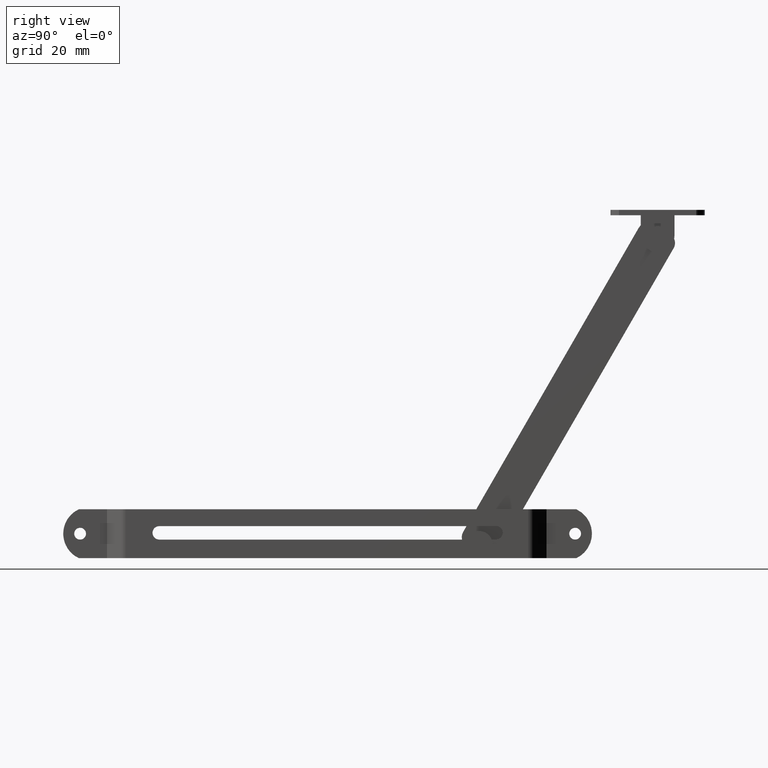
[diagram: clean part render]
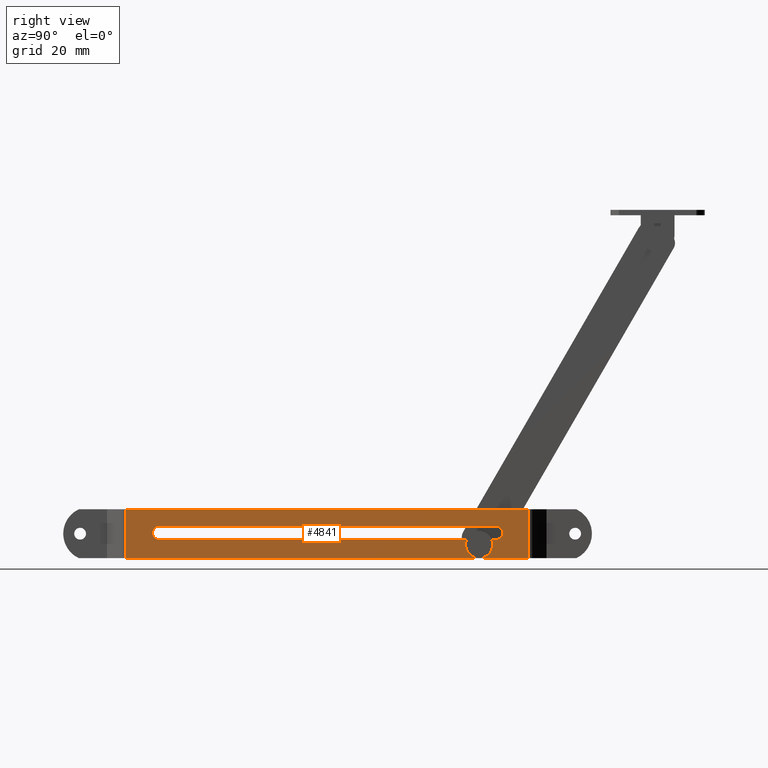
[diagram: same view with one face highlighted and labeled with its STEP entity id]
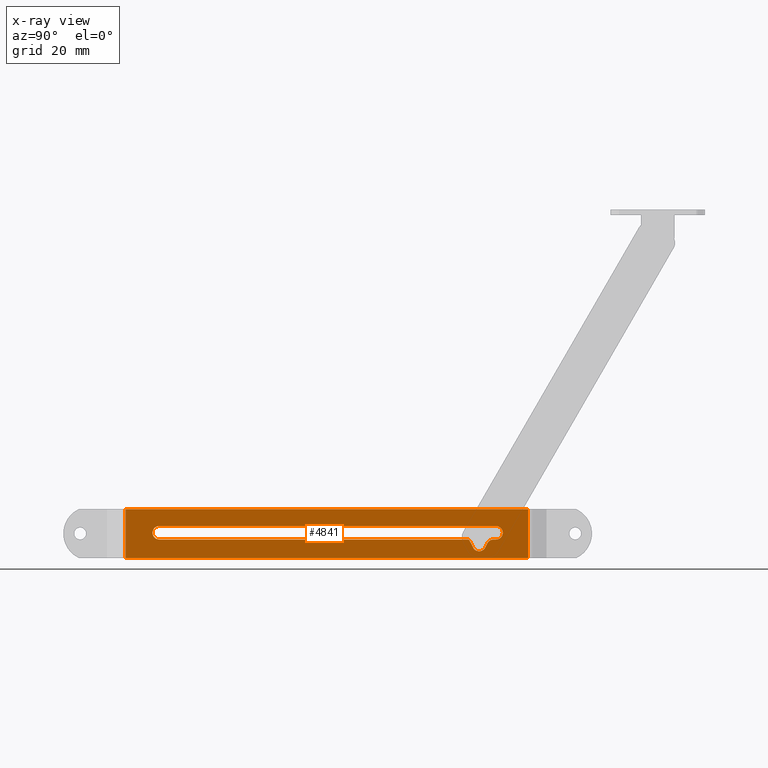
[diagram: x-ray of the same camera — body ghosted, the highlighted face saturated]
A machine part, right view. The second image highlights one B-rep face of the part: STEP entity #4841.
The next image is the same camera in x-ray: the body ghosted, the highlighted face saturated — about 0% of this face is hidden behind the body in this view.
In plain terms, the highlighted face is a freeform B-spline surface patch.
Its self-contained STEP definition (entity closure, byte-faithful):
#4096=CARTESIAN_POINT('',(6.000000000000120,-31.807403999999998,-1.750000000000000));
#4097=VERTEX_POINT('',#4096);
#4103=CARTESIAN_POINT('',(6.000000000000120,-31.361231838264601,-2.024322349151845));
#4104=VERTEX_POINT('',#4103);
#4105=CARTESIAN_POINT('',(6.000000000000120,-31.361231838264580,-2.024322349151836));
#4106=CARTESIAN_POINT('',(6.000000000000120,-31.499986401281109,-1.750000000000000));
#4107=CARTESIAN_POINT('',(6.000000000000120,-31.807403999999998,-1.750000000000000));
#4115=(BOUNDED_CURVE()B_SPLINE_CURVE(2,(#4105,#4106,#4107),.UNSPECIFIED.,.F.,.U.)CURVE()GEOMETRIC_REPRESENTATION_ITEM()QUASI_UNIFORM_CURVE()RATIONAL_B_SPLINE_CURVE((1.0,0.851867155634119,1.0))REPRESENTATION_ITEM(''));
#4116=EDGE_CURVE('',#4104,#4097,#4115,.T.);
#4153=CARTESIAN_POINT('',(6.000000000000120,-123.499999965093390,-1.750000000000000));
#4154=VERTEX_POINT('',#4153);
#4160=CARTESIAN_POINT('',(6.000000000000120,-123.499999965093390,-1.750000000000000));
#4161=CARTESIAN_POINT('',(6.000000000000120,-31.807403999999998,-1.750000000000000));
#4162=QUASI_UNIFORM_CURVE('',1,(#4160,#4161),.UNSPECIFIED.,.F.,.U.);
#4163=EDGE_CURVE('',#4154,#4097,#4162,.T.);
#4206=CARTESIAN_POINT('',(6.000000000000120,-123.500000000000000,2.250000000000000));
#4207=VERTEX_POINT('',#4206);
#4213=CARTESIAN_POINT('',(6.000000000000120,-123.500000000000000,2.249999999999993));
#4214=CARTESIAN_POINT('',(6.000000000000120,-124.654700546136270,2.249999999999993));
#4215=CARTESIAN_POINT('',(6.000000000000120,-125.232050813386710,1.249999989923328));
#4216=CARTESIAN_POINT('',(6.000000000000120,-125.809401080637040,0.249999979846663));
#4217=CARTESIAN_POINT('',(6.000000000000120,-125.232050795933400,-0.750000020153337));
#4218=CARTESIAN_POINT('',(6.000000000000120,-124.654700511229660,-1.750000020153337));
#4219=CARTESIAN_POINT('',(6.000000000000120,-123.499999965093390,-1.750000000000007));
#4227=(BOUNDED_CURVE()B_SPLINE_CURVE(2,(#4213,#4214,#4215,#4216,#4217,#4218,#4219),.UNSPECIFIED.,.F.,.U.)B_SPLINE_CURVE_WITH_KNOTS((3,2,2,3),(0.0,0.333333333333333,0.666666666666667,1.0),.UNSPECIFIED.)CURVE()GEOMETRIC_REPRESENTATION_ITEM()RATIONAL_B_SPLINE_CURVE((1.0,0.866025402329997,1.0,0.866025402329997,1.0,0.866025402329997,1.0))REPRESENTATION_ITEM(''));
#4228=EDGE_CURVE('',#4207,#4154,#4227,.T.);
#4246=CARTESIAN_POINT('',(6.000000000000120,-23.500000104719749,2.250000000000000));
#4247=VERTEX_POINT('',#4246);
#4253=CARTESIAN_POINT('',(6.000000000000120,-23.500000104719749,2.250000000000000));
#4254=CARTESIAN_POINT('',(6.000000000000120,-123.500000000000000,2.250000000000000));
#4255=QUASI_UNIFORM_CURVE('',1,(#4253,#4254),.UNSPECIFIED.,.F.,.U.);
#4256=EDGE_CURVE('',#4247,#4207,#4255,.T.);
#4299=CARTESIAN_POINT('',(6.000000000000120,-23.500000000000000,-1.750000000000000));
#4300=VERTEX_POINT('',#4299);
#4306=CARTESIAN_POINT('',(6.000000000000120,-23.500000000000000,-1.750000000000000));
#4307=CARTESIAN_POINT('',(6.000000000000120,-22.345299438349699,-1.750000000000000));
#4308=CARTESIAN_POINT('',(6.000000000000120,-21.767949174977829,-0.749999969770012));
#4309=CARTESIAN_POINT('',(6.000000000000120,-21.190598911605967,0.250000060459976));
#4310=CARTESIAN_POINT('',(6.000000000000120,-21.767949227337709,1.250000060459976));
#4311=CARTESIAN_POINT('',(6.000000000000120,-22.345299543069441,2.250000060459974));
#4312=CARTESIAN_POINT('',(6.000000000000120,-23.500000104719749,2.249999999999998));
#4320=(BOUNDED_CURVE()B_SPLINE_CURVE(2,(#4306,#4307,#4308,#4309,#4310,#4311,#4312),.UNSPECIFIED.,.F.,.U.)B_SPLINE_CURVE_WITH_KNOTS((3,2,2,3),(0.0,0.333333333333333,0.666666666666667,1.0),.UNSPECIFIED.)CURVE()GEOMETRIC_REPRESENTATION_ITEM()RATIONAL_B_SPLINE_CURVE((1.0,0.866025399421116,1.0,0.866025399421116,1.0,0.866025399421116,1.0))REPRESENTATION_ITEM(''));
#4321=EDGE_CURVE('',#4300,#4247,#4320,.T.);
#4339=CARTESIAN_POINT('',(6.000000000000120,-24.270324999999950,-1.750000000000000));
#4340=VERTEX_POINT('',#4339);
#4346=CARTESIAN_POINT('',(6.000000000000120,-24.270324999999950,-1.750000000000000));
#4347=CARTESIAN_POINT('',(6.000000000000120,-23.500000000000000,-1.750000000000000));
#4348=QUASI_UNIFORM_CURVE('',1,(#4346,#4347),.UNSPECIFIED.,.F.,.U.);
#4349=EDGE_CURVE('',#4340,#4300,#4348,.T.);
#4371=CARTESIAN_POINT('',(6.000000000000120,-26.058874883500149,-2.854964070982900));
#4372=VERTEX_POINT('',#4371);
#4378=CARTESIAN_POINT('',(6.000000000000120,-24.270324999999950,-1.750000000000000));
#4379=CARTESIAN_POINT('',(6.000000000000120,-25.505922710946095,-1.750000000000000));
#4380=CARTESIAN_POINT('',(6.000000000000120,-26.058874883500138,-2.854964070982911));
#4388=(BOUNDED_CURVE()B_SPLINE_CURVE(2,(#4378,#4379,#4380),.UNSPECIFIED.,.F.,.U.)CURVE()GEOMETRIC_REPRESENTATION_ITEM()QUASI_UNIFORM_CURVE()RATIONAL_B_SPLINE_CURVE((1.0,0.850740255456548,1.0))REPRESENTATION_ITEM(''));
#4389=EDGE_CURVE('',#4340,#4372,#4388,.T.);
#4420=CARTESIAN_POINT('',(6.000000000000120,-26.711450116478851,-4.145035928975225));
#4421=VERTEX_POINT('',#4420);
#4427=CARTESIAN_POINT('',(6.000000000000120,-26.711450116478851,-4.145035928975225));
#4428=CARTESIAN_POINT('',(6.000000000000120,-26.058874883500149,-2.854964070982900));
#4429=QUASI_UNIFORM_CURVE('',1,(#4427,#4428),.UNSPECIFIED.,.F.,.U.);
#4430=EDGE_CURVE('',#4421,#4372,#4429,.T.);
#4467=CARTESIAN_POINT('',(6.000000000000120,-30.284688646941699,-4.152710603392625));
#4468=VERTEX_POINT('',#4467);
#4474=CARTESIAN_POINT('',(6.000000000000120,-30.284688646941689,-4.152710603392616));
#4475=CARTESIAN_POINT('',(6.000000000000120,-29.728333617456915,-5.252642853062361));
#4476=CARTESIAN_POINT('',(6.000000000000120,-28.495704369215829,-5.249995386883722));
#4477=CARTESIAN_POINT('',(6.000000000000120,-27.263075120974747,-5.247347920705081));
#4478=CARTESIAN_POINT('',(6.000000000000120,-26.711450116478868,-4.145035928975217));
#4486=(BOUNDED_CURVE()B_SPLINE_CURVE(2,(#4474,#4475,#4476,#4477,#4478),.UNSPECIFIED.,.F.,.U.)B_SPLINE_CURVE_WITH_KNOTS((3,2,3),(0.0,0.500000000000000,1.0),.UNSPECIFIED.)CURVE()GEOMETRIC_REPRESENTATION_ITEM()RATIONAL_B_SPLINE_CURVE((1.0,0.851304196438051,1.0,0.851304196438051,1.0))REPRESENTATION_ITEM(''));
#4487=EDGE_CURVE('',#4468,#4421,#4486,.T.);
#4504=CARTESIAN_POINT('',(6.000000000000120,-31.361231838264601,-2.024322349151845));
#4505=CARTESIAN_POINT('',(6.000000000000120,-30.284688646941699,-4.152710603392625));
#4506=QUASI_UNIFORM_CURVE('',1,(#4504,#4505),.UNSPECIFIED.,.F.,.U.);
#4507=EDGE_CURVE('',#4104,#4468,#4506,.T.);
#4533=CARTESIAN_POINT('',(6.000000000000110,-14.000061000000020,-7.250000000000091));
#4534=VERTEX_POINT('',#4533);
#4548=CARTESIAN_POINT('',(6.000000000000110,-133.499968999999990,-7.250000000000091));
#4549=VERTEX_POINT('',#4548);
#4550=CARTESIAN_POINT('',(6.000000000000110,-14.000061000000020,-7.250000000000091));
#4551=CARTESIAN_POINT('',(6.000000000000110,-133.499968999999990,-7.250000000000091));
#4552=QUASI_UNIFORM_CURVE('',1,(#4550,#4551),.UNSPECIFIED.,.F.,.U.);
#4553=EDGE_CURVE('',#4534,#4549,#4552,.T.);
#4740=CARTESIAN_POINT('',(6.000000000000110,-133.499968999999990,7.250000000000000));
#4741=VERTEX_POINT('',#4740);
#4755=CARTESIAN_POINT('',(6.000000000000110,-14.000061000000020,7.250000000000000));
#4756=VERTEX_POINT('',#4755);
#4757=CARTESIAN_POINT('',(6.000000000000110,-14.000061000000020,7.250000000000000));
#4758=CARTESIAN_POINT('',(6.000000000000110,-133.499968999999990,7.250000000000000));
#4759=QUASI_UNIFORM_CURVE('',1,(#4757,#4758),.UNSPECIFIED.,.F.,.U.);
#4760=EDGE_CURVE('',#4756,#4741,#4759,.T.);
#4800=CARTESIAN_POINT('',(6.000000000000110,-133.499968999999990,7.250000000000000));
#4801=CARTESIAN_POINT('',(6.000000000000110,-133.499968999999990,-7.250000000000091));
#4802=QUASI_UNIFORM_CURVE('',1,(#4800,#4801),.UNSPECIFIED.,.F.,.U.);
#4803=EDGE_CURVE('',#4741,#4549,#4802,.T.);
#4814=CARTESIAN_POINT('',(6.000000000000110,-139.468990294765690,7.974274971896194));
#4815=CARTESIAN_POINT('',(6.000000000000110,-139.468990294765690,-7.974275360816590));
#4816=CARTESIAN_POINT('',(6.000000000000110,-8.031037568409529,7.974274971896194));
#4817=CARTESIAN_POINT('',(6.000000000000110,-8.031037568409529,-7.974275360816590));
#4818=B_SPLINE_SURFACE_WITH_KNOTS('',1,1,((#4814,#4816),(#4815,#4817)),.UNSPECIFIED.,.F.,.F.,.U.,(2,2),(2,2),(0.0,15.948550332712781),(0.0,131.437952726356090),.UNSPECIFIED.);
#4819=ORIENTED_EDGE('',*,*,#4553,.F.);
#4820=CARTESIAN_POINT('',(6.000000000000110,-14.000061000000020,7.250000000000000));
#4821=CARTESIAN_POINT('',(6.000000000000110,-14.000061000000020,-7.250000000000091));
#4822=QUASI_UNIFORM_CURVE('',1,(#4820,#4821),.UNSPECIFIED.,.F.,.U.);
#4823=EDGE_CURVE('',#4756,#4534,#4822,.T.);
#4824=ORIENTED_EDGE('',*,*,#4823,.F.);
#4825=ORIENTED_EDGE('',*,*,#4760,.T.);
#4826=ORIENTED_EDGE('',*,*,#4803,.T.);
#4827=EDGE_LOOP('',(#4819,#4824,#4825,#4826));
#4828=FACE_OUTER_BOUND('',#4827,.T.);
#4829=ORIENTED_EDGE('',*,*,#4507,.F.);
#4830=ORIENTED_EDGE('',*,*,#4116,.T.);
#4831=ORIENTED_EDGE('',*,*,#4163,.F.);
#4832=ORIENTED_EDGE('',*,*,#4228,.F.);
#4833=ORIENTED_EDGE('',*,*,#4256,.F.);
#4834=ORIENTED_EDGE('',*,*,#4321,.F.);
#4835=ORIENTED_EDGE('',*,*,#4349,.F.);
#4836=ORIENTED_EDGE('',*,*,#4389,.T.);
#4837=ORIENTED_EDGE('',*,*,#4430,.F.);
#4838=ORIENTED_EDGE('',*,*,#4487,.F.);
#4839=EDGE_LOOP('',(#4829,#4830,#4831,#4832,#4833,#4834,#4835,#4836,#4837,#4838));
#4840=FACE_BOUND('',#4839,.T.);
#4841=ADVANCED_FACE('',(#4828,#4840),#4818,.T.);